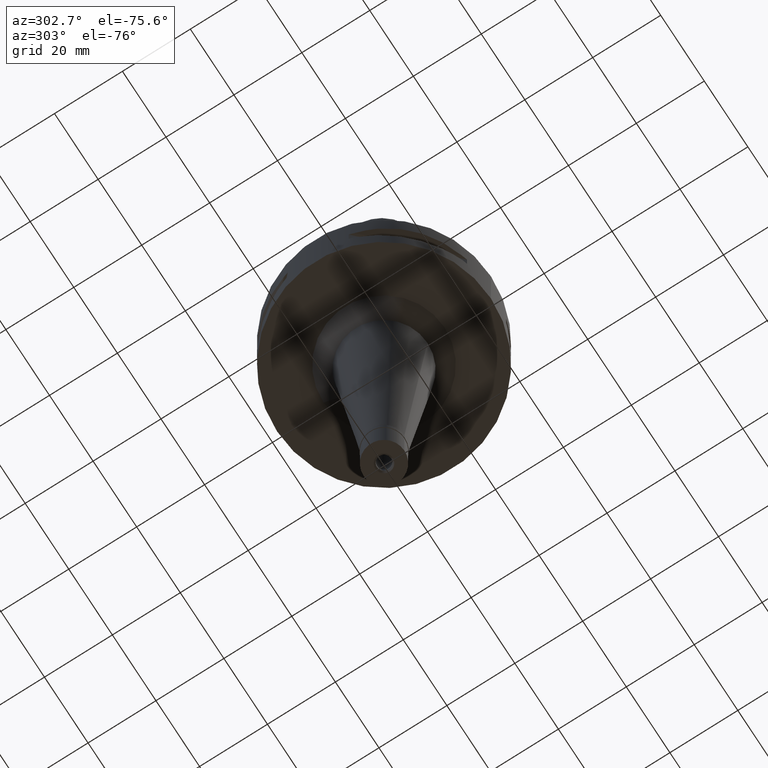
[diagram: clean part render]
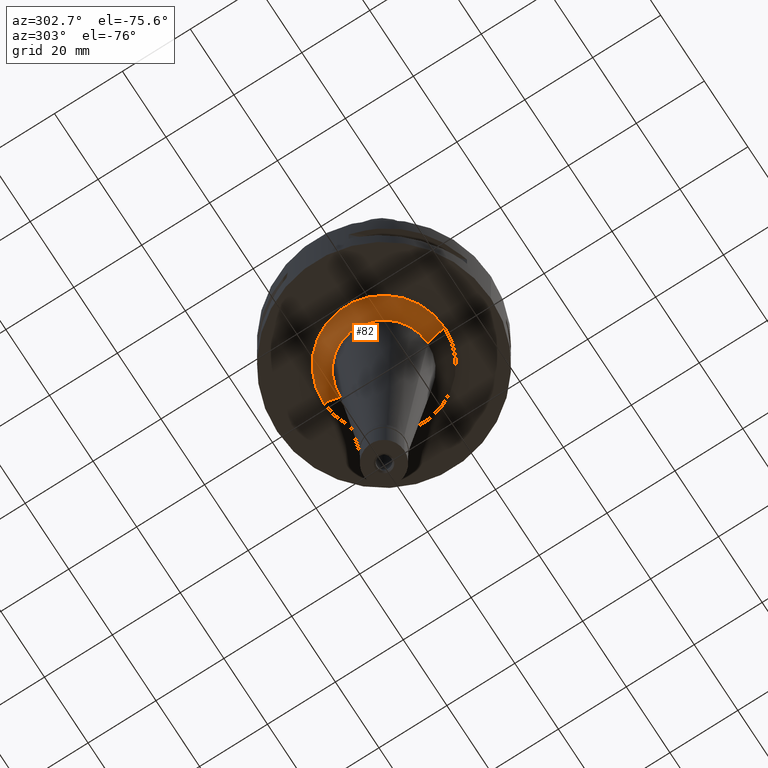
[diagram: same view with one face highlighted and labeled with its STEP entity id]
A machine part, auxiliary view. The second image highlights one B-rep face of the part: STEP entity #82.
In plain terms, the highlighted conical surface has half-angle 45 deg.
Its self-contained STEP definition (entity closure, byte-faithful):
#3 = CARTESIAN_POINT ( 'NONE',  ( 0.0000000000000000000, 17.80661802231999857, -22.00000000000000000 ) ) ;
#82 = ADVANCED_FACE ( 'NONE', ( #4101 ), #3647, .T. ) ;
#260 = DIRECTION ( 'NONE',  ( 0.0000000000000000000, 0.0000000000000000000, -1.000000000000000000 ) ) ;
#922 = ORIENTED_EDGE ( 'NONE', *, *, #4420, .F. ) ;
#945 = AXIS2_PLACEMENT_3D ( 'NONE', #3387, #260, #2976 ) ;
#1003 = DIRECTION ( 'NONE',  ( 0.0000000000000000000, 0.0000000000000000000, -1.000000000000000000 ) ) ;
#1018 = DIRECTION ( 'NONE',  ( 0.0000000000000000000, 1.000000000000000000, 0.0000000000000000000 ) ) ;
#1065 = AXIS2_PLACEMENT_3D ( 'NONE', #3005, #1003, #4837 ) ;
#1084 = CARTESIAN_POINT ( 'NONE',  ( 0.0000000000000000000, -12.80661802232000035, -27.00000000000000000 ) ) ;
#1389 = ORIENTED_EDGE ( 'NONE', *, *, #4531, .F. ) ;
#1492 = CIRCLE ( 'NONE', #945, 17.80661802231999857 ) ;
#1769 = ORIENTED_EDGE ( 'NONE', *, *, #3511, .T. ) ;
#1779 = DIRECTION ( 'NONE',  ( 0.0000000000000000000, 0.7071067811866975639, -0.7071067811863974706 ) ) ;
#1804 = AXIS2_PLACEMENT_3D ( 'NONE', #1816, #4802, #1018 ) ;
#1816 = CARTESIAN_POINT ( 'NONE',  ( 0.0000000000000000000, 0.0000000000000000000, -24.50000000000000000 ) ) ;
#1992 = VERTEX_POINT ( 'NONE', #2434 ) ;
#2399 = VERTEX_POINT ( 'NONE', #4612 ) ;
#2434 = CARTESIAN_POINT ( 'NONE',  ( 0.0000000000000000000, 17.80661802231999857, -22.00000000000000000 ) ) ;
#2736 = CARTESIAN_POINT ( 'NONE',  ( 0.0000000000000000000, 12.80661802232000035, -27.00000000000000000 ) ) ;
#2842 = VECTOR ( 'NONE', #4188, 1000.000000000000114 ) ;
#2907 = CARTESIAN_POINT ( 'NONE',  ( 0.0000000000000000000, -17.80661802231999857, -22.00000000000000000 ) ) ;
#2976 = DIRECTION ( 'NONE',  ( 0.0000000000000000000, -1.000000000000000000, 0.0000000000000000000 ) ) ;
#3005 = CARTESIAN_POINT ( 'NONE',  ( 0.0000000000000000000, 0.0000000000000000000, -27.00000000000000000 ) ) ;
#3051 = VERTEX_POINT ( 'NONE', #2736 ) ;
#3212 = EDGE_LOOP ( 'NONE', ( #1389, #922, #1769, #4401 ) ) ;
#3233 = CIRCLE ( 'NONE', #1065, 12.80661802232000035 ) ;
#3291 = LINE ( 'NONE', #2907, #4863 ) ;
#3387 = CARTESIAN_POINT ( 'NONE',  ( 0.0000000000000000000, 0.0000000000000000000, -22.00000000000000000 ) ) ;
#3511 = EDGE_CURVE ( 'NONE', #2399, #1992, #1492, .T. ) ;
#3647 = CONICAL_SURFACE ( 'NONE', #1804, 15.30661802231999857, 0.7853981633972997312 ) ;
#3919 = LINE ( 'NONE', #3, #2842 ) ;
#4101 = FACE_OUTER_BOUND ( 'NONE', #3212, .T. ) ;
#4188 = DIRECTION ( 'NONE',  ( 0.0000000000000000000, -0.7071067811866975639, -0.7071067811863974706 ) ) ;
#4401 = ORIENTED_EDGE ( 'NONE', *, *, #4791, .T. ) ;
#4420 = EDGE_CURVE ( 'NONE', #2399, #4893, #3291, .T. ) ;
#4531 = EDGE_CURVE ( 'NONE', #4893, #3051, #3233, .T. ) ;
#4612 = CARTESIAN_POINT ( 'NONE',  ( 0.0000000000000000000, -17.80661802231999857, -22.00000000000000000 ) ) ;
#4791 = EDGE_CURVE ( 'NONE', #1992, #3051, #3919, .T. ) ;
#4802 = DIRECTION ( 'NONE',  ( 0.0000000000000000000, 0.0000000000000000000, 1.000000000000000000 ) ) ;
#4837 = DIRECTION ( 'NONE',  ( 0.0000000000000000000, -1.000000000000000000, 0.0000000000000000000 ) ) ;
#4863 = VECTOR ( 'NONE', #1779, 1000.000000000000114 ) ;
#4893 = VERTEX_POINT ( 'NONE', #1084 ) ;